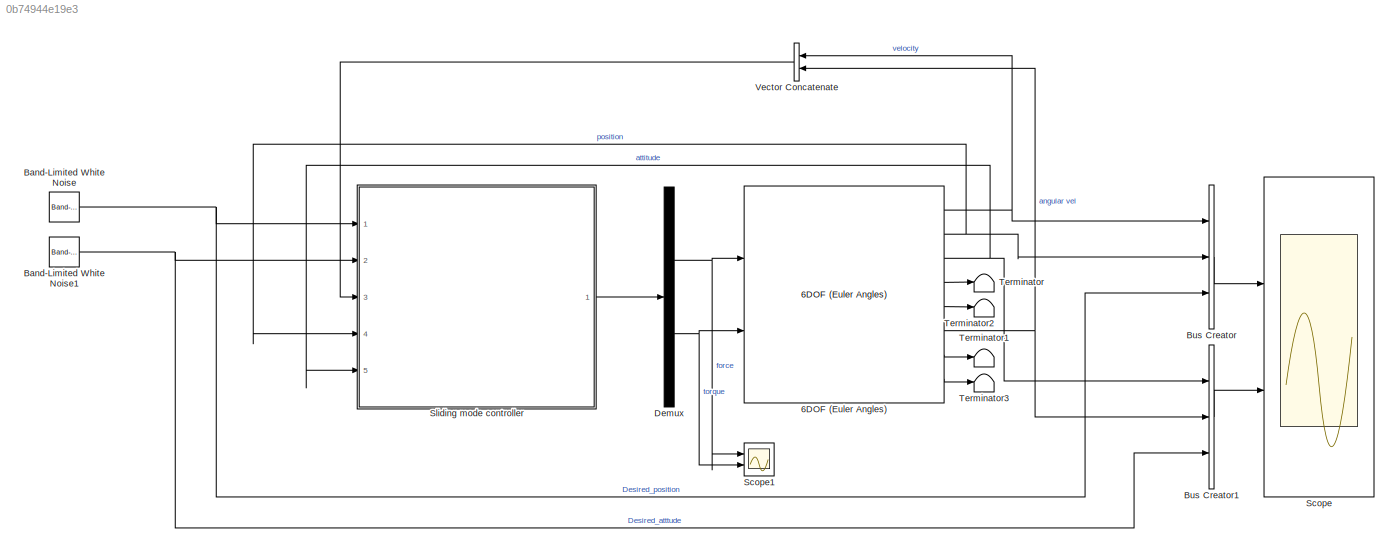
MODEL slx_0b74944e19e3
KIND model
CONFIG AbsTol = auto
CONFIG EnableMultiTasking = off
CONFIG FixedStep = auto
CONFIG MaxStep = auto
CONFIG MinStep = auto
CONFIG RelTol = 1e-3
CONFIG SampleTimeConstraint = Unconstrained
CONFIG Solver = VariableStepAuto
CONFIG SolverName = VariableStepAuto
CONFIG StartTime = 0.0
CONFIG StopTime = 30
BLOCK [Reference] 6DOF (Euler Angles)  REF=shared6dof/6DOF (Euler Angles)
  Ports = [2, 8]
  SourceBlock = shared6dof/6DOF (Euler Angles)
  SourceProductBaseCode = AE
  SourceProductName = Aerospace Blockset
  SourceType = 6DOF EoM (Body Axis)
BLOCK [Reference] Band-Limited White Noise  REF=simulink/Sources/Band-Limited
White Noise
  Ports = [0, 1]
  SourceBlock = simulink/Sources/Band-Limited\nWhite Noise
  SourceProductBaseCode = SL
  SourceProductName = Simulink
  SourceType = Band-Limited White Noise.
BLOCK [Reference] Band-Limited White Noise1  REF=simulink/Sources/Band-Limited
White Noise
  Ports = [0, 1]
  SourceBlock = simulink/Sources/Band-Limited\nWhite Noise
  SourceProductBaseCode = SL
  SourceProductName = Simulink
  SourceType = Band-Limited White Noise.
BLOCK [BusCreator] Bus Creator
  DisplayOption = bar
  InheritFromInputs = on
  Inputs = 3
  Ports = [3, 1]
BLOCK [BusCreator] Bus Creator1
  DisplayOption = bar
  InheritFromInputs = on
  Inputs = 3
  Ports = [3, 1]
BLOCK [Demux] Demux
  DisplayOption = bar
  Outputs = 2
  Ports = [1, 2]
BLOCK [Scope] Scope
  Floating = off
  NumInputPorts = 2
  Ports = [2]
  ScopeSpecificationString = Simulink.scopes.TimeScopeBlockCfg('CurrentConfiguration', extmgr.ConfigurationSet(extmgr.Configuration('Core','General UI',true,'FigureColor',[0 0 0]),extmgr.Configuration('Core','Source UI',true),extmgr.Configuration('Sources','WiredSimulink',true),extmgr.Configuration('Visuals','Time Domain',true,'SerializedDisplays',{struct('MinYLimReal','-2.49226','MaxYLimReal','3.66468','YLabelReal','','MinYL...<+3033ch>
BLOCK [Scope] Scope1
  Floating = off
  NumInputPorts = 2
  Ports = [2]
  ScopeSpecificationString = Simulink.scopes.TimeScopeBlockCfg('CurrentConfiguration', extmgr.ConfigurationSet(extmgr.Configuration('Core','General UI',true),extmgr.Configuration('Core','Source UI',true),extmgr.Configuration('Sources','WiredSimulink',true,'DataLoggingVariableName','ScopeData1'),extmgr.Configuration('Visuals','Time Domain',true,'SerializedDisplays',{struct('MinYLimReal','-27.65613','MaxYLimReal','27.09949','YL...<+2080ch>
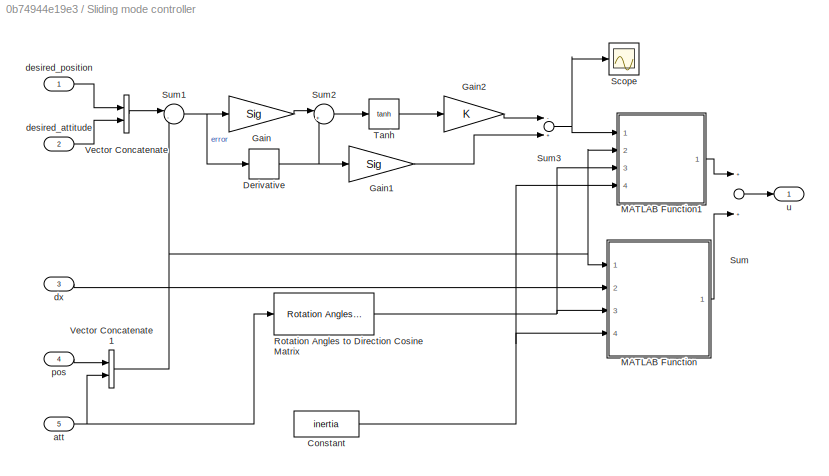
BLOCK [SubSystem] Sliding mode controller
  Ports = [5, 1]
  RequestExecContextInheritance = off
BLOCK [Constant] Sliding mode controller/Constant
  Value = inertia
BLOCK [Derivative] Sliding mode controller/Derivative
BLOCK [Gain] Sliding mode controller/Gain
  Gain = Sig
  Multiplication = Matrix(K*u) (u vector)
  OutDataTypeStr = Inherit: Inherit via internal rule
  ParamDataTypeStr = Inherit: Inherit via internal rule
  SaturateOnIntegerOverflow = off
BLOCK [Gain] Sliding mode controller/Gain1
  Gain = Sig
  Multiplication = Matrix(K*u) (u vector)
  OutDataTypeStr = Inherit: Inherit via internal rule
  ParamDataTypeStr = Inherit: Inherit via internal rule
  SaturateOnIntegerOverflow = off
BLOCK [Gain] Sliding mode controller/Gain2
  Gain = K
  Multiplication = Matrix(K*u) (u vector)
  OutDataTypeStr = Inherit: Inherit via internal rule
  ParamDataTypeStr = Inherit: Inherit via internal rule
  SaturateOnIntegerOverflow = off
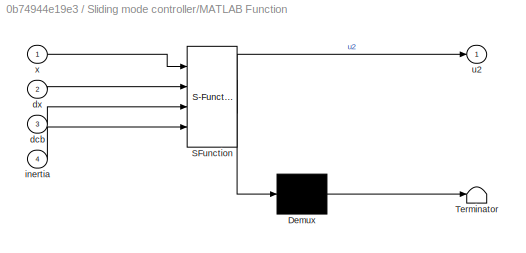
BLOCK [SubSystem] Sliding mode controller/MATLAB Function
  ErrorFcn = Stateflow.Translate.translate
  PermitHierarchicalResolution = ExplicitOnly
  Ports = [4, 1]
  RequestExecContextInheritance = off
  SFBlockType = MATLAB Function
  TreatAsAtomicUnit = on
BLOCK [Demux] Sliding mode controller/MATLAB Function/ Demux 
  Outputs = 1
  Ports = [1, 1]
BLOCK [S-Function] Sliding mode controller/MATLAB Function/ SFunction 
  EnableBusSupport = on
  FunctionName = sf_sfun
  PortCounts = [4 2]
  Ports = [4, 2]
  SFcnIsStateOwnerBlock = off
  SFunctionDeploymentMode = off
  Tag = Stateflow S-Function pyramid_sim 2
BLOCK [Terminator] Sliding mode controller/MATLAB Function/ Terminator 
BLOCK [Inport] Sliding mode controller/MATLAB Function/dcb
  IconDisplay = Port number
  Port = 3
BLOCK [Inport] Sliding mode controller/MATLAB Function/dx
  IconDisplay = Port number
  Port = 2
BLOCK [Inport] Sliding mode controller/MATLAB Function/inertia
  IconDisplay = Port number
  Port = 4
BLOCK [Outport] Sliding mode controller/MATLAB Function/u2
  IconDisplay = Port number
BLOCK [Inport] Sliding mode controller/MATLAB Function/x
  IconDisplay = Port number
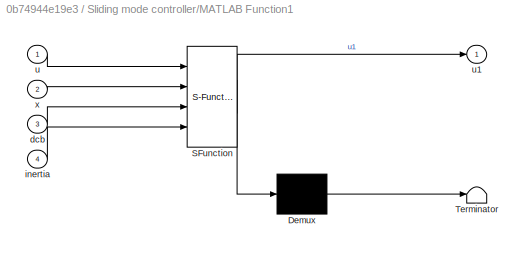
BLOCK [SubSystem] Sliding mode controller/MATLAB Function1
  ErrorFcn = Stateflow.Translate.translate
  PermitHierarchicalResolution = ExplicitOnly
  Ports = [4, 1]
  RequestExecContextInheritance = off
  SFBlockType = MATLAB Function
  TreatAsAtomicUnit = on
BLOCK [Demux] Sliding mode controller/MATLAB Function1/ Demux 
  Outputs = 1
  Ports = [1, 1]
BLOCK [S-Function] Sliding mode controller/MATLAB Function1/ SFunction 
  EnableBusSupport = on
  FunctionName = sf_sfun
  PortCounts = [4 2]
  Ports = [4, 2]
  SFcnIsStateOwnerBlock = off
  SFunctionDeploymentMode = off
  Tag = Stateflow S-Function pyramid_sim 1
BLOCK [Terminator] Sliding mode controller/MATLAB Function1/ Terminator 
BLOCK [Inport] Sliding mode controller/MATLAB Function1/dcb
  IconDisplay = Port number
  Port = 3
BLOCK [Inport] Sliding mode controller/MATLAB Function1/inertia
  IconDisplay = Port number
  Port = 4
BLOCK [Inport] Sliding mode controller/MATLAB Function1/u
  IconDisplay = Port number
BLOCK [Outport] Sliding mode controller/MATLAB Function1/u1
  IconDisplay = Port number
BLOCK [Inport] Sliding mode controller/MATLAB Function1/x
  IconDisplay = Port number
  Port = 2
BLOCK [Reference] Sliding mode controller/Rotation Angles to Direction Cosine Matrix  REF=sharedtransform/Rotation Angles to
Direction Cosine Matrix
  AttributesFormatString = Rotation Order: %<rotationOrder>
  Ports = [1, 1]
  SourceBlock = sharedtransform/Rotation Angles to\nDirection Cosine Matrix
  SourceProductBaseCode = AE
  SourceProductName = Aerospace Blockset
  SourceType = Ang2DCM
BLOCK [Scope] Sliding mode controller/Scope
  Floating = off
  NumInputPorts = 1
  Ports = [1]
  ScopeSpecificationString = Simulink.scopes.TimeScopeBlockCfg('CurrentConfiguration', extmgr.ConfigurationSet(extmgr.Configuration('Core','General UI',true),extmgr.Configuration('Core','Source UI',true),extmgr.Configuration('Sources','WiredSimulink',true,'DataLoggingVariableName','ScopeData2'),extmgr.Configuration('Visuals','Time Domain',true,'SerializedDisplays',{struct('MinYLimReal','-4.60299','MaxYLimReal','4.23439','YLab...<+1484ch>
BLOCK [Sum] Sliding mode controller/Sum
  InputSameDT = off
  OutDataTypeStr = Inherit: Inherit via internal rule
  Ports = [2, 1]
  SaturateOnIntegerOverflow = off
BLOCK [Sum] Sliding mode controller/Sum1
  IconShape = round
  InputSameDT = off
  Inputs = |-+
  OutDataTypeStr = Inherit: Inherit via internal rule
  Ports = [2, 1]
  SaturateOnIntegerOverflow = off
BLOCK [Sum] Sliding mode controller/Sum2
  IconShape = round
  InputSameDT = off
  Inputs = |++
  OutDataTypeStr = Inherit: Inherit via internal rule
  Ports = [2, 1]
  SaturateOnIntegerOverflow = off
BLOCK [Sum] Sliding mode controller/Sum3
  InputSameDT = off
  Inputs = -+
  OutDataTypeStr = Inherit: Inherit via internal rule
  Ports = [2, 1]
  SaturateOnIntegerOverflow = off
BLOCK [Trigonometry] Sliding mode controller/Tanh
  Operator = tanh
  Ports = [1, 1]
BLOCK [Concatenate] Sliding mode controller/Vector Concatenate
  Ports = [2, 1]
BLOCK [Concatenate] Sliding mode controller/Vector Concatenate1
  Ports = [2, 1]
BLOCK [Inport] Sliding mode controller/att
  IconDisplay = Port number
  Port = 5
BLOCK [Inport] Sliding mode controller/desired_attitude
  IconDisplay = Port number
  Port = 2
BLOCK [Inport] Sliding mode controller/desired_position 
  IconDisplay = Port number
BLOCK [Inport] Sliding mode controller/dx
  IconDisplay = Port number
  Port = 3
BLOCK [Inport] Sliding mode controller/pos
  IconDisplay = Port number
  Port = 4
BLOCK [Outport] Sliding mode controller/u
  IconDisplay = Port number
BLOCK [Terminator] Terminator
BLOCK [Terminator] Terminator1
BLOCK [Terminator] Terminator2
BLOCK [Terminator] Terminator3
BLOCK [Concatenate] Vector Concatenate
  Ports = [2, 1]
NET 6DOF (Euler Angles):1 -> Bus Creator:1, Vector Concatenate:1
NET 6DOF (Euler Angles):2 -> Bus Creator:2, Sliding mode controller:4
NET 6DOF (Euler Angles):3 -> Bus Creator1:1, Sliding mode controller:5
LINE 6DOF (Euler Angles):4 -> Terminator:1
LINE 6DOF (Euler Angles):5 -> Terminator2:1
NET 6DOF (Euler Angles):6 -> Bus Creator1:2, Vector Concatenate:2
LINE 6DOF (Euler Angles):7 -> Terminator1:1
LINE 6DOF (Euler Angles):8 -> Terminator3:1
NET Band-Limited White Noise1:1 -> Bus Creator1:3, Sliding mode controller:2
NET Band-Limited White Noise:1 -> Bus Creator:3, Sliding mode controller:1
LINE Bus Creator1:1 -> Scope:2
LINE Bus Creator:1 -> Scope:1
NET Demux:1 -> 6DOF (Euler Angles):1, Scope1:1
NET Demux:2 -> 6DOF (Euler Angles):2, Scope1:2
NET Sliding mode controller/Constant:1 -> Sliding mode controller/MATLAB Function1:4, Sliding mode controller/MATLAB Function:4
NET Sliding mode controller/Derivative:1 -> Sliding mode controller/Gain1:1, Sliding mode controller/Sum2:2
LINE Sliding mode controller/Gain1:1 -> Sliding mode controller/Sum3:2
LINE Sliding mode controller/Gain2:1 -> Sliding mode controller/Sum3:1
LINE Sliding mode controller/Gain:1 -> Sliding mode controller/Sum2:1
LINE Sliding mode controller/MATLAB Function1:1 -> Sliding mode controller/Sum:1
LINE Sliding mode controller/MATLAB Function:1 -> Sliding mode controller/Sum:2
NET Sliding mode controller/Rotation Angles to Direction Cosine Matrix:1 -> Sliding mode controller/MATLAB Function1:3, Sliding mode controller/MATLAB Function:3
NET Sliding mode controller/Sum1:1 -> Sliding mode controller/Derivative:1, Sliding mode controller/Gain:1
LINE Sliding mode controller/Sum2:1 -> Sliding mode controller/Tanh:1
NET Sliding mode controller/Sum3:1 -> Sliding mode controller/MATLAB Function1:1, Sliding mode controller/Scope:1
LINE Sliding mode controller/Sum:1 -> Sliding mode controller/u:1
LINE Sliding mode controller/Tanh:1 -> Sliding mode controller/Gain2:1
NET Sliding mode controller/Vector Concatenate1:1 -> Sliding mode controller/MATLAB Function1:2, Sliding mode controller/MATLAB Function:1, Sliding mode controller/Sum1:2
LINE Sliding mode controller/Vector Concatenate:1 -> Sliding mode controller/Sum1:1
NET Sliding mode controller/att:1 -> Sliding mode controller/Rotation Angles to Direction Cosine Matrix:1, Sliding mode controller/Vector Concatenate1:2
LINE Sliding mode controller/desired_attitude:1 -> Sliding mode controller/Vector Concatenate:2
LINE Sliding mode controller/desired_position :1 -> Sliding mode controller/Vector Concatenate:1
LINE Sliding mode controller/dx:1 -> Sliding mode controller/MATLAB Function:2
LINE Sliding mode controller/pos:1 -> Sliding mode controller/Vector Concatenate1:1
LINE Sliding mode controller:1 -> Demux:1
LINE Vector Concatenate:1 -> Sliding mode controller:3
note: NET lines group one-source signal fan-out (src -> all destinations, sorted); 1:1 wires keep LINE
CHART Sliding mode controller/MATLAB Function1 states=1 transitions=1
  STATE_LABEL 'eML_blk_kernel()'
  STATE_LABEL "SCRIPT:\nfunction u1 = Minvx(u, x, dcb, inertia)\n\nIg = dcb'*inertia*dcb;\n\n%S = zeros(3, 3);\nS = [1,          0,          -sin(x(5));\n     0,  cos(x(4)), cos(x(5))*sin(x(4));\n     0, -sin(x(4)), cos(x(5))*cos(x(4));];\n\nM = zeros(6, 6);\nM(1:3, 1:3) = eye(3);\nM(4:6, 4:6) = S'*Ig*S;\n\nu1 = M \\ u;\n"
CHART Sliding mode controller/MATLAB Function states=1 transitions=1
  STATE_LABEL 'eML_blk_kernel()'
  STATE_LABEL "SCRIPT:\nfunction u2 = model(x, dx, dcb, inertia)\n\nIg = dcb'*inertia*dcb;\n\n%S = zeros(3, 3);\nS = [1,          0,          -sin(x(5));\n     0,  cos(x(4)), cos(x(5))*sin(x(4));\n     0, -sin(x(4)), cos(x(5))*cos(x(4));];\n\n%dS = zeros(3, 3);\ndS = [0,          0,                                 -cos(x(5));\n      0, -sin(x(4)), -sin(x(5))*sin(x(4)) + cos(x(5))*cos(x(4));\n      0, -cos(x(4)), -sin(x(5))*c...<+206ch>"
